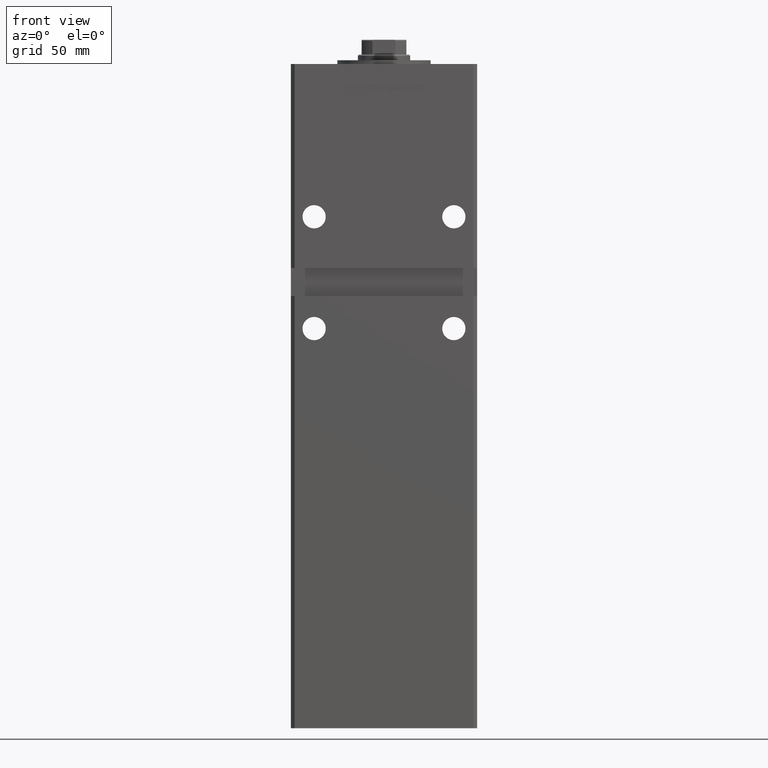
[diagram: clean part render]
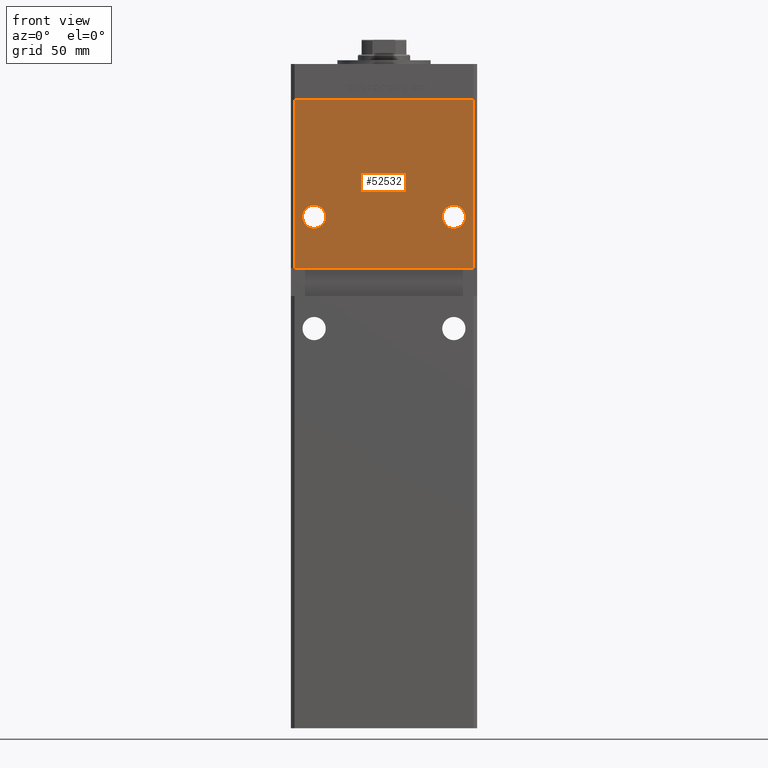
[diagram: same view with one face highlighted and labeled with its STEP entity id]
A machine part, front view. The second image highlights one B-rep face of the part: STEP entity #52532.
In plain terms, the highlighted planar face has unit normal (0, 1, 0).
Its self-contained STEP definition (entity closure, byte-faithful):
#165 = CARTESIAN_POINT ( 'NONE',  ( 47.99999999999995737, -43.50000000000000000, 228.0000000000000000 ) ) ;
#900 = EDGE_LOOP ( 'NONE', ( #51612, #19298 ) ) ;
#2542 = DIRECTION ( 'NONE',  ( 0.000000000000000000, 1.000000000000000000, 0.000000000000000000 ) ) ;
#2568 = EDGE_CURVE ( 'NONE', #35252, #36132, #31159, .T. ) ;
#3243 = ORIENTED_EDGE ( 'NONE', *, *, #51627, .F. ) ;
#3295 = DIRECTION ( 'NONE',  ( 0.000000000000000000, 1.000000000000000000, 0.000000000000000000 ) ) ;
#4681 = CARTESIAN_POINT ( 'NONE',  ( -47.99999999999998579, -43.50000000000000000, 228.0000000000000000 ) ) ;
#5023 = LINE ( 'NONE', #5828, #7153 ) ;
#5167 = DIRECTION ( 'NONE',  ( 0.000000000000000000, 1.000000000000000000, 0.000000000000000000 ) ) ;
#5828 = CARTESIAN_POINT ( 'NONE',  ( -49.99999999999998579, -43.50000000000000000, 228.0000000000000000 ) ) ;
#6166 = CARTESIAN_POINT ( 'NONE',  ( 37.50000000000000000, -43.50000000000000000, 249.2500000000000000 ) ) ;
#7153 = VECTOR ( 'NONE', #18198, 1000.000000000000000 ) ;
#8024 = EDGE_CURVE ( 'NONE', #26854, #36983, #39829, .T. ) ;
#8925 = CARTESIAN_POINT ( 'NONE',  ( -47.99999999999998579, -43.50000000000000000, 318.5000000000000000 ) ) ;
#10408 = CARTESIAN_POINT ( 'NONE',  ( 47.99999999999998579, -43.50000000000000000, 318.5000000000000000 ) ) ;
#12059 = VERTEX_POINT ( 'NONE', #165 ) ;
#12385 = ORIENTED_EDGE ( 'NONE', *, *, #14824, .T. ) ;
#12625 = ORIENTED_EDGE ( 'NONE', *, *, #38180, .F. ) ;
#13627 = ORIENTED_EDGE ( 'NONE', *, *, #41886, .F. ) ;
#14208 = CIRCLE ( 'NONE', #44185, 6.249999999999977796 ) ;
#14360 = CARTESIAN_POINT ( 'NONE',  ( -37.50000000000000000, -43.50000000000000000, 261.7500000000000000 ) ) ;
#14559 = VERTEX_POINT ( 'NONE', #24851 ) ;
#14824 = EDGE_CURVE ( 'NONE', #36983, #26854, #14208, .T. ) ;
#16492 = CARTESIAN_POINT ( 'NONE',  ( -47.99999999999998579, -43.50000000000000000, 318.5000000000000000 ) ) ;
#17411 = DIRECTION ( 'NONE',  ( 0.000000000000000000, 1.000000000000000000, 0.000000000000000000 ) ) ;
#17574 = EDGE_CURVE ( 'NONE', #52278, #14559, #22028, .T. ) ;
#18073 = FACE_BOUND ( 'NONE', #900, .T. ) ;
#18198 = DIRECTION ( 'NONE',  ( -1.000000000000000000, -0.000000000000000000, -0.000000000000000000 ) ) ;
#18604 = DIRECTION ( 'NONE',  ( 0.000000000000000000, -0.000000000000000000, 1.000000000000000000 ) ) ;
#18828 = CARTESIAN_POINT ( 'NONE',  ( -47.99999999999998579, -43.50000000000000000, 318.5000000000000000 ) ) ;
#19298 = ORIENTED_EDGE ( 'NONE', *, *, #38048, .T. ) ;
#20114 = ORIENTED_EDGE ( 'NONE', *, *, #8024, .T. ) ;
#20240 = VERTEX_POINT ( 'NONE', #51836 ) ;
#21177 = DIRECTION ( 'NONE',  ( 0.000000000000000000, 0.000000000000000000, 1.000000000000000000 ) ) ;
#22028 = CIRCLE ( 'NONE', #29713, 6.249999999999977796 ) ;
#23509 = DIRECTION ( 'NONE',  ( 0.000000000000000000, 0.000000000000000000, 1.000000000000000000 ) ) ;
#23975 = CARTESIAN_POINT ( 'NONE',  ( 37.50000000000000000, -43.50000000000000000, 261.7500000000000000 ) ) ;
#24851 = CARTESIAN_POINT ( 'NONE',  ( -37.50000000000000000, -43.50000000000000000, 249.2500000000000000 ) ) ;
#24935 = VECTOR ( 'NONE', #48685, 1000.000000000000000 ) ;
#25248 = AXIS2_PLACEMENT_3D ( 'NONE', #8925, #5167, #18604 ) ;
#26544 = LINE ( 'NONE', #10408, #41196 ) ;
#26756 = CARTESIAN_POINT ( 'NONE',  ( -37.50000000000000000, -43.50000000000000000, 255.5000000000000000 ) ) ;
#26854 = VERTEX_POINT ( 'NONE', #23975 ) ;
#27514 = LINE ( 'NONE', #52740, #24935 ) ;
#27753 = DIRECTION ( 'NONE',  ( 0.000000000000000000, 0.000000000000000000, 1.000000000000000000 ) ) ;
#28780 = EDGE_LOOP ( 'NONE', ( #20114, #12385 ) ) ;
#29073 = FACE_OUTER_BOUND ( 'NONE', #45198, .T. ) ;
#29219 = AXIS2_PLACEMENT_3D ( 'NONE', #49349, #17411, #21177 ) ;
#29409 = VECTOR ( 'NONE', #31951, 1000.000000000000000 ) ;
#29713 = AXIS2_PLACEMENT_3D ( 'NONE', #26756, #2542, #48451 ) ;
#31159 = LINE ( 'NONE', #18828, #29409 ) ;
#31951 = DIRECTION ( 'NONE',  ( -0.000000000000000000, -0.000000000000000000, -1.000000000000000000 ) ) ;
#34707 = AXIS2_PLACEMENT_3D ( 'NONE', #52225, #39078, #23509 ) ;
#35002 = CARTESIAN_POINT ( 'NONE',  ( 37.50000000000000000, -43.50000000000000000, 255.5000000000000000 ) ) ;
#35252 = VERTEX_POINT ( 'NONE', #16492 ) ;
#36132 = VERTEX_POINT ( 'NONE', #4681 ) ;
#36983 = VERTEX_POINT ( 'NONE', #6166 ) ;
#38048 = EDGE_CURVE ( 'NONE', #14559, #52278, #41078, .T. ) ;
#38180 = EDGE_CURVE ( 'NONE', #20240, #12059, #26544, .T. ) ;
#38459 = FACE_BOUND ( 'NONE', #28780, .T. ) ;
#39078 = DIRECTION ( 'NONE',  ( 0.000000000000000000, 1.000000000000000000, 0.000000000000000000 ) ) ;
#39829 = CIRCLE ( 'NONE', #34707, 6.249999999999977796 ) ;
#41078 = CIRCLE ( 'NONE', #29219, 6.249999999999977796 ) ;
#41196 = VECTOR ( 'NONE', #47698, 1000.000000000000000 ) ;
#41416 = PLANE ( 'NONE',  #25248 ) ;
#41886 = EDGE_CURVE ( 'NONE', #35252, #20240, #27514, .T. ) ;
#44185 = AXIS2_PLACEMENT_3D ( 'NONE', #35002, #3295, #27753 ) ;
#45198 = EDGE_LOOP ( 'NONE', ( #52350, #3243, #12625, #13627 ) ) ;
#47698 = DIRECTION ( 'NONE',  ( -0.000000000000000000, -0.000000000000000000, -1.000000000000000000 ) ) ;
#48451 = DIRECTION ( 'NONE',  ( 0.000000000000000000, 0.000000000000000000, 1.000000000000000000 ) ) ;
#48685 = DIRECTION ( 'NONE',  ( 1.000000000000000000, 0.000000000000000000, 0.000000000000000000 ) ) ;
#49349 = CARTESIAN_POINT ( 'NONE',  ( -37.50000000000000000, -43.50000000000000000, 255.5000000000000000 ) ) ;
#51612 = ORIENTED_EDGE ( 'NONE', *, *, #17574, .T. ) ;
#51627 = EDGE_CURVE ( 'NONE', #12059, #36132, #5023, .T. ) ;
#51836 = CARTESIAN_POINT ( 'NONE',  ( 47.99999999999998579, -43.50000000000000000, 318.5000000000000000 ) ) ;
#52225 = CARTESIAN_POINT ( 'NONE',  ( 37.50000000000000000, -43.50000000000000000, 255.5000000000000000 ) ) ;
#52278 = VERTEX_POINT ( 'NONE', #14360 ) ;
#52350 = ORIENTED_EDGE ( 'NONE', *, *, #2568, .T. ) ;
#52532 = ADVANCED_FACE ( 'NONE', ( #38459, #18073, #29073 ), #41416, .F. ) ;
#52740 = CARTESIAN_POINT ( 'NONE',  ( -47.99999999999998579, -43.50000000000000000, 318.5000000000000000 ) ) ;